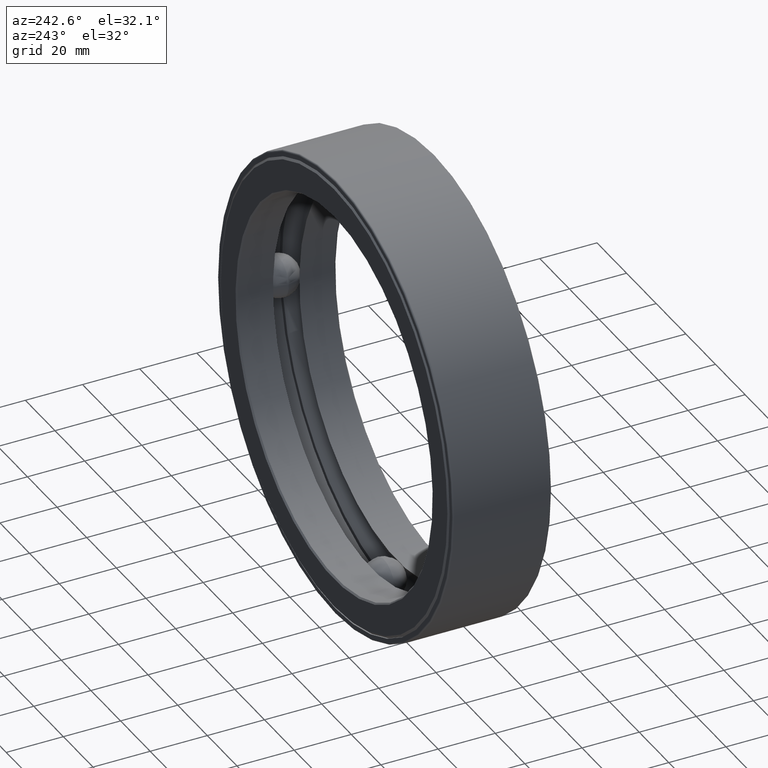
[diagram: clean part render]
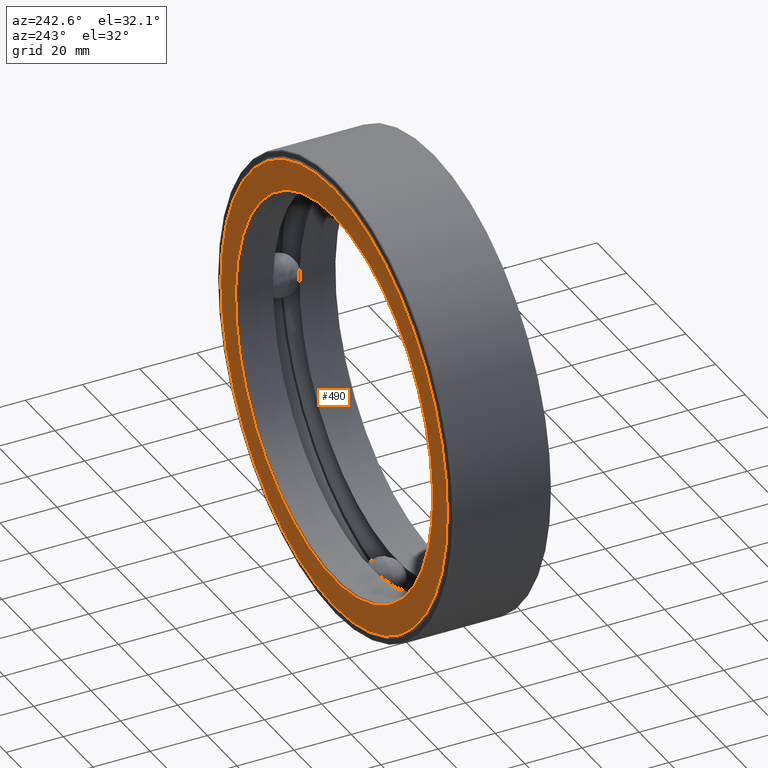
[diagram: same view with one face highlighted and labeled with its STEP entity id]
A machine part, auxiliary view. The second image highlights one B-rep face of the part: STEP entity #490.
In plain terms, the highlighted planar face has unit normal (-0, 1, 0).
Its self-contained STEP definition (entity closure, byte-faithful):
#7 = VERTEX_POINT ( 'NONE', #215 ) ;
#11 = DIRECTION ( 'NONE',  ( 0.0000000000000000000, 0.0000000000000000000, 1.000000000000000000 ) ) ;
#23 = DIRECTION ( 'NONE',  ( -0.0000000000000000000, 1.000000000000000000, -0.0000000000000000000 ) ) ;
#40 = DIRECTION ( 'NONE',  ( -0.0000000000000000000, 1.000000000000000000, 0.0000000000000000000 ) ) ;
#50 = CARTESIAN_POINT ( 'NONE',  ( 0.0000000000000000000, 1.374999999999999300, 0.0000000000000000000 ) ) ;
#79 = EDGE_LOOP ( 'NONE', ( #501 ) ) ;
#105 = DIRECTION ( 'NONE',  ( 0.0000000000000000000, 0.0000000000000000000, 1.000000000000000000 ) ) ;
#116 = AXIS2_PLACEMENT_3D ( 'NONE', #298, #40, #169 ) ;
#154 = CIRCLE ( 'NONE', #362, 3.009999999999999800 ) ;
#169 = DIRECTION ( 'NONE',  ( 0.0000000000000000000, 0.0000000000000000000, 1.000000000000000000 ) ) ;
#171 = DIRECTION ( 'NONE',  ( -0.0000000000000000000, 1.000000000000000000, -0.0000000000000000000 ) ) ;
#200 = EDGE_CURVE ( 'NONE', #309, #309, #515, .T. ) ;
#214 = AXIS2_PLACEMENT_3D ( 'NONE', #284, #23, #105 ) ;
#215 = CARTESIAN_POINT ( 'NONE',  ( 0.0000000000000000000, 1.374999999999999300, 3.009999999999999800 ) ) ;
#223 = EDGE_LOOP ( 'NONE', ( #382 ) ) ;
#247 = PLANE ( 'NONE',  #116 ) ;
#284 = CARTESIAN_POINT ( 'NONE',  ( 0.0000000000000000000, 1.375000000000000000, 0.0000000000000000000 ) ) ;
#298 = CARTESIAN_POINT ( 'NONE',  ( -1.926303072455575300E-015, 1.374999999999999800, 0.0000000000000000000 ) ) ;
#309 = VERTEX_POINT ( 'NONE', #498 ) ;
#362 = AXIS2_PLACEMENT_3D ( 'NONE', #50, #171, #11 ) ;
#382 = ORIENTED_EDGE ( 'NONE', *, *, #522, .T. ) ;
#462 = FACE_OUTER_BOUND ( 'NONE', #223, .T. ) ;
#490 = ADVANCED_FACE ( 'NONE', ( #462, #556 ), #247, .T. ) ;
#498 = CARTESIAN_POINT ( 'NONE',  ( 0.0000000000000000000, 1.375000000000000000, 2.620000000000000100 ) ) ;
#501 = ORIENTED_EDGE ( 'NONE', *, *, #200, .F. ) ;
#515 = CIRCLE ( 'NONE', #214, 2.620000000000000100 ) ;
#522 = EDGE_CURVE ( 'NONE', #7, #7, #154, .T. ) ;
#556 = FACE_BOUND ( 'NONE', #79, .T. ) ;